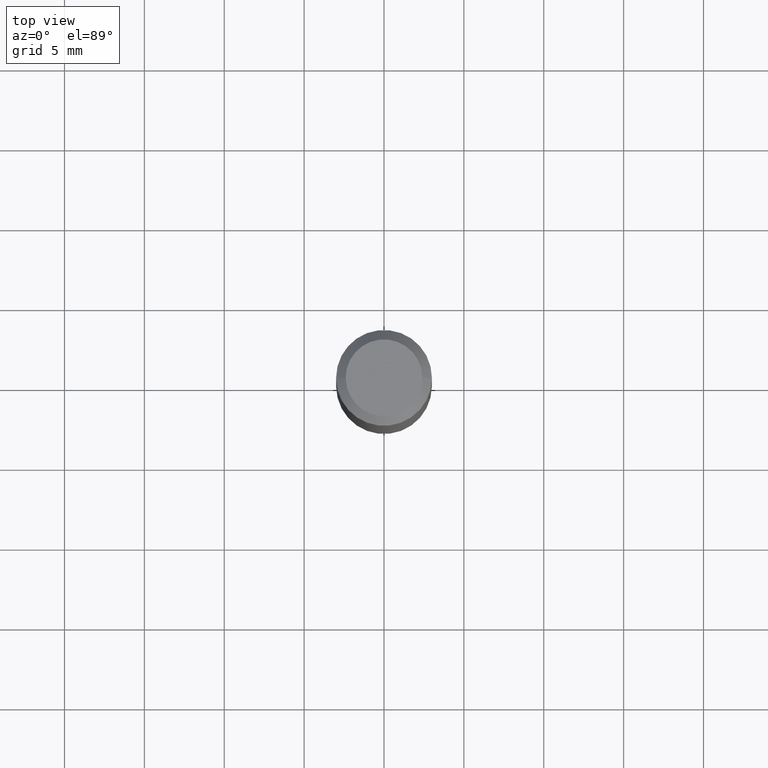
[diagram: clean part render]
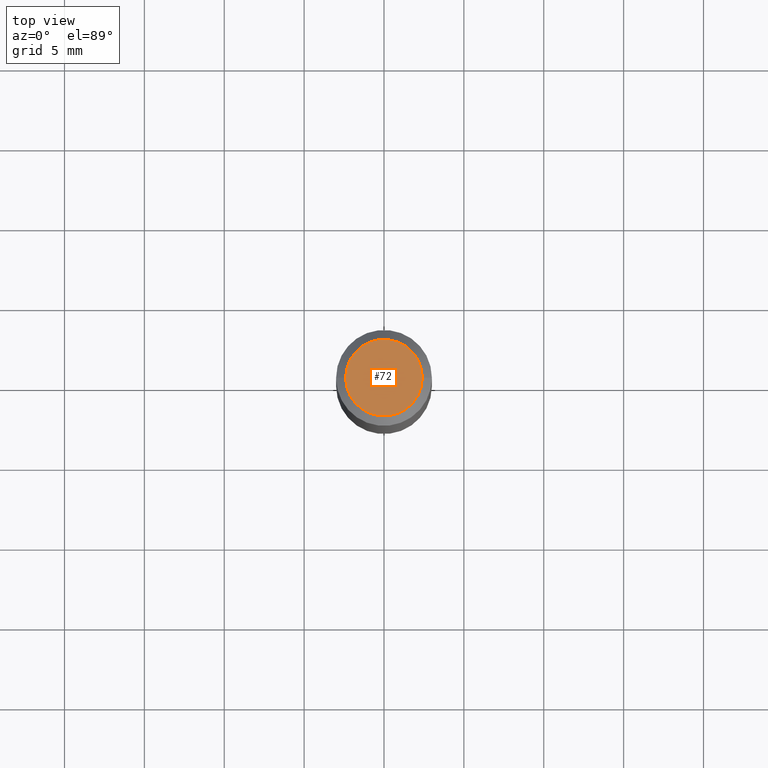
[diagram: same view with one face highlighted and labeled with its STEP entity id]
A machine part, top view. The second image highlights one B-rep face of the part: STEP entity #72.
In plain terms, the highlighted planar face has unit normal (0, -0, -1).
Its self-contained STEP definition (entity closure, byte-faithful):
#28 = AXIS2_PLACEMENT_3D ( 'NONE', #471, #311, #312 ) ;
#50 = CIRCLE ( 'NONE', #28, 0.09447999999999998066 ) ;
#52 = DIRECTION ( 'NONE',  ( 1.000000000000000000, -6.982962677686267499E-15, 4.875432709231658792E-29 ) ) ;
#55 = CIRCLE ( 'NONE', #195, 0.09447999999999998066 ) ;
#64 = CARTESIAN_POINT ( 'NONE',  ( 7.545787641473140628E-46, -1.077338491108201769E-31, -3.085620075131671975E-17 ) ) ;
#72 = ADVANCED_FACE ( 'NONE', ( #150 ), #115, .F. ) ;
#84 = CARTESIAN_POINT ( 'NONE',  ( 3.772893820736570314E-46, -5.386692455541008845E-32, -1.542810037565835988E-17 ) ) ;
#115 = PLANE ( 'NONE',  #455 ) ;
#150 = FACE_OUTER_BOUND ( 'NONE', #378, .T. ) ;
#195 = AXIS2_PLACEMENT_3D ( 'NONE', #64, #227, #52 ) ;
#227 = DIRECTION ( 'NONE',  ( -2.445468806185136597E-29, 3.491481338843145583E-15, 1.000000000000000000 ) ) ;
#239 = DIRECTION ( 'NONE',  ( -1.000000000000000000, 6.982962677686265922E-15, -4.876176775795935793E-29 ) ) ;
#254 = VERTEX_POINT ( 'NONE', #342 ) ;
#269 = CARTESIAN_POINT ( 'NONE',  ( 0.09447999999999998066, -7.704367267948738690E-16, -3.085620075131172158E-17 ) ) ;
#275 = EDGE_CURVE ( 'NONE', #254, #283, #50, .T. ) ;
#283 = VERTEX_POINT ( 'NONE', #269 ) ;
#301 = ORIENTED_EDGE ( 'NONE', *, *, #417, .T. ) ;
#311 = DIRECTION ( 'NONE',  ( -2.445468806185136597E-29, 3.491481338843145583E-15, 1.000000000000000000 ) ) ;
#312 = DIRECTION ( 'NONE',  ( 1.000000000000000000, -6.982962677686267499E-15, 4.875432709231658792E-29 ) ) ;
#331 = ORIENTED_EDGE ( 'NONE', *, *, #275, .T. ) ;
#333 = DIRECTION ( 'NONE',  ( 2.438088387897960049E-29, -3.491481338843145188E-15, -1.000000000000000000 ) ) ;
#342 = CARTESIAN_POINT ( 'NONE',  ( -0.09447999999999998066, 7.009847083995354710E-16, -3.085620075132147757E-17 ) ) ;
#378 = EDGE_LOOP ( 'NONE', ( #331, #301 ) ) ;
#417 = EDGE_CURVE ( 'NONE', #283, #254, #55, .T. ) ;
#455 = AXIS2_PLACEMENT_3D ( 'NONE', #84, #333, #239 ) ;
#471 = CARTESIAN_POINT ( 'NONE',  ( 7.545787641473140628E-46, -1.077338491108201769E-31, -3.085620075131671975E-17 ) ) ;